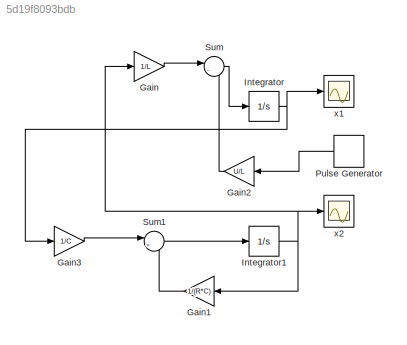
MODEL slx_5d19f8093bdb
KIND model
CONFIG AbsTol = auto
CONFIG EnableMultiTasking = off
CONFIG FixedStep = auto
CONFIG MaxStep = auto
CONFIG MinStep = auto
CONFIG RelTol = 1e-3
CONFIG SampleTimeConstraint = Unconstrained
CONFIG SolverName = ode23t
CONFIG StartTime = 0.0
CONFIG StopTime = 0.005
BLOCK [Gain] Gain
  Gain = 1/L
BLOCK [Gain] Gain1
  Gain = 1/(R*C)
BLOCK [Gain] Gain2
  Gain = U/L
BLOCK [Gain] Gain3
  Gain = 1/C
BLOCK [Integrator] Integrator
BLOCK [Integrator] Integrator1
BLOCK [DiscretePulseGenerator] Pulse Generator
  Amplitude = 0.955
  Period = 1e-5
  PulseType = Time based
  PulseWidth = 40
BLOCK [Sum] Sum
  Inputs = |-+
BLOCK [Sum] Sum1
  Inputs = |+-
BLOCK [Scope] x1
  Floating = off
  NumInputPorts = 1
  ScopeSpecificationString = Simulink.scopes.TimeScopeBlockCfg('CurrentConfiguration', extmgr.ConfigurationSet(extmgr.Configuration('Core','General UI',true),extmgr.Configuration('Core','Source UI',true),extmgr.Configuration('Sources','WiredSimulink',true),extmgr.Configuration('Visuals','Time Domain',true,'SerializedDisplays',{struct('MinYLimReal','-0.09881','MaxYLimReal','1.33344','YLabelReal','','MinYLimMag','0.00000','MaxY...<+1430ch>
BLOCK [Scope] x2
  Floating = off
  NumInputPorts = 1
  ScopeSpecificationString = Simulink.scopes.TimeScopeBlockCfg('CurrentConfiguration', extmgr.ConfigurationSet(extmgr.Configuration('Core','General UI',true),extmgr.Configuration('Core','Source UI',true),extmgr.Configuration('Sources','WiredSimulink',true,'DataLoggingVariableName','ScopeData1'),extmgr.Configuration('Visuals','Time Domain',true,'SerializedDisplays',{struct('MinYLimReal','0.45383','MaxYLimReal','14.53112','YLab...<+1444ch>
LINE Gain1:1 -> Sum1:2
LINE Gain2:1 -> Sum:2
LINE Gain3:1 -> Sum1:1
LINE Gain:1 -> Sum:1
NET Integrator1:1 -> Gain1:1, Gain:1, x2:1
NET Integrator:1 -> Gain3:1, x1:1
LINE Pulse Generator:1 -> Gain2:1
LINE Sum1:1 -> Integrator1:1
LINE Sum:1 -> Integrator:1
note: NET lines group one-source signal fan-out (src -> all destinations, sorted); 1:1 wires keep LINE
